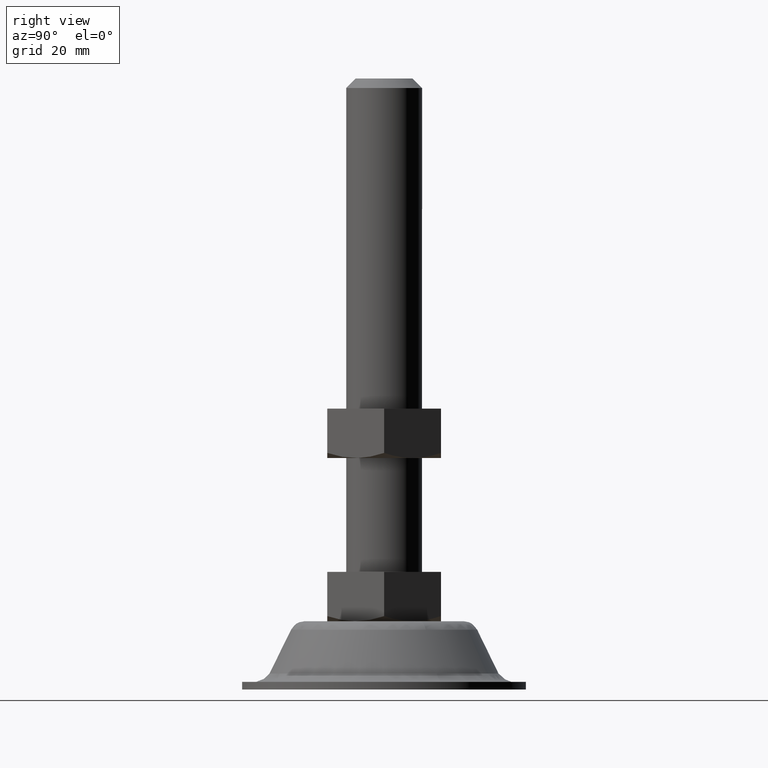
[diagram: clean part render]
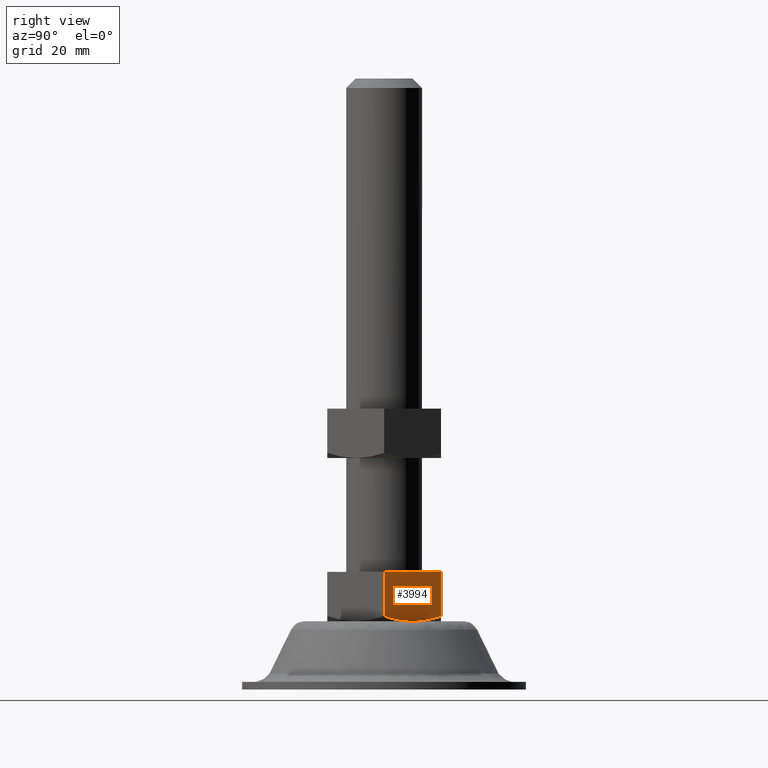
[diagram: same view with one face highlighted and labeled with its STEP entity id]
A machine part, right view. The second image highlights one B-rep face of the part: STEP entity #3994.
In plain terms, the highlighted face is a freeform B-spline surface patch.
Its self-contained STEP definition (entity closure, byte-faithful):
#2693=CARTESIAN_POINT('',(8.639746000000001,15.0,19.345671394023402));
#2694=VERTEX_POINT('',#2693);
#2717=CARTESIAN_POINT('',(17.300000000000001,-1.447629E-015,19.339745951230899));
#2718=VERTEX_POINT('',#2717);
#2719=CARTESIAN_POINT('',(17.300000000000001,-1.447629E-015,19.339745951230899));
#2720=CARTESIAN_POINT('',(16.592941722767890,1.224660865429819,18.931525664537759));
#2721=CARTESIAN_POINT('',(15.880722203566361,2.458261264219844,18.595166574799990));
#2722=CARTESIAN_POINT('',(14.801235094892681,4.327987790728773,18.245981053792178));
#2723=CARTESIAN_POINT('',(14.439541958482760,4.954458682477307,18.155540189446029));
#2724=CARTESIAN_POINT('',(13.711936844397590,6.214707713426930,18.033398389028552));
#2725=CARTESIAN_POINT('',(13.346021212827759,6.848492181359092,18.001748326998712));
#2726=CARTESIAN_POINT('',(12.885799685170850,7.645619253481176,18.001546577077889));
#2727=CARTESIAN_POINT('',(12.793614645803340,7.805288426061184,18.003465697697191));
#2728=CARTESIAN_POINT('',(12.608961067811620,8.125117806339850,18.011251166375111));
#2729=CARTESIAN_POINT('',(12.516661840701390,8.284984757892692,18.017113104138250));
#2730=CARTESIAN_POINT('',(12.240427566274510,8.763436558082763,18.040486526452241));
#2731=CARTESIAN_POINT('',(12.056912984918890,9.081293138309430,18.063800979005290));
#2732=CARTESIAN_POINT('',(11.508210259183770,10.031674141687260,18.155931109065261));
#2733=CARTESIAN_POINT('',(11.144867414517419,10.661002411966059,18.246985155436430));
#2734=CARTESIAN_POINT('',(10.061320491401830,12.537760743388411,18.598259512653328));
#2735=CARTESIAN_POINT('',(9.347572270797711,13.774008930688920,18.936281682498429));
#2736=CARTESIAN_POINT('',(8.639746000000001,15.0,19.345671394023402));
#2737=B_SPLINE_CURVE_WITH_KNOTS('',3,(#2719,#2720,#2721,#2722,#2723,#2724,#2725,#2726,#2727,#2728,#2729,#2730,#2731,#2732,#2733,#2734,#2735,#2736),.UNSPECIFIED.,.F.,.U.,(4,2,2,2,2,2,2,2,4),(0.0,0.250000000000000,0.375000000000000,0.500000000000001,0.531250000000001,0.562500000000001,0.625000000000001,0.750000000000000,1.0),.UNSPECIFIED.);
#2738=EDGE_CURVE('',#2718,#2694,#2737,.T.);
#3886=CARTESIAN_POINT('',(17.300000000000001,0.0,31.0));
#3887=VERTEX_POINT('',#3886);
#3893=CARTESIAN_POINT('',(8.639746000000001,15.0,31.0));
#3894=VERTEX_POINT('',#3893);
#3895=CARTESIAN_POINT('',(8.639746000000001,15.0,31.0));
#3896=CARTESIAN_POINT('',(17.300000000000001,0.0,31.0));
#3897=QUASI_UNIFORM_CURVE('',1,(#3895,#3896),.UNSPECIFIED.,.F.,.U.);
#3898=EDGE_CURVE('',#3894,#3887,#3897,.T.);
#3970=CARTESIAN_POINT('',(17.300000000000001,0.0,31.0));
#3971=CARTESIAN_POINT('',(17.300000000000001,-1.447629E-015,19.339745951230899));
#3972=QUASI_UNIFORM_CURVE('',1,(#3970,#3971),.UNSPECIFIED.,.F.,.U.);
#3973=EDGE_CURVE('',#3887,#2718,#3972,.T.);
#3979=CARTESIAN_POINT('',(17.732579507922232,-0.749249689308546,17.352318113524198));
#3980=CARTESIAN_POINT('',(8.207166104934267,15.749250359860810,17.352318113524198));
#3981=CARTESIAN_POINT('',(17.732579507922232,-0.749249689308546,31.649270966327339));
#3982=CARTESIAN_POINT('',(8.207166104934267,15.749250359860810,31.649270966327339));
#3983=B_SPLINE_SURFACE_WITH_KNOTS('',1,1,((#3979,#3981),(#3980,#3982)),.UNSPECIFIED.,.F.,.F.,.U.,(2,2),(2,2),(0.0,19.050826868413459),(0.0,14.296952852803130),.UNSPECIFIED.);
#3984=ORIENTED_EDGE('',*,*,#3973,.T.);
#3985=ORIENTED_EDGE('',*,*,#2738,.T.);
#3986=CARTESIAN_POINT('',(8.639746000000001,15.0,31.0));
#3987=CARTESIAN_POINT('',(8.639746000000001,15.0,19.345671394023402));
#3988=QUASI_UNIFORM_CURVE('',1,(#3986,#3987),.UNSPECIFIED.,.F.,.U.);
#3989=EDGE_CURVE('',#3894,#2694,#3988,.T.);
#3990=ORIENTED_EDGE('',*,*,#3989,.F.);
#3991=ORIENTED_EDGE('',*,*,#3898,.T.);
#3992=EDGE_LOOP('',(#3984,#3985,#3990,#3991));
#3993=FACE_OUTER_BOUND('',#3992,.T.);
#3994=ADVANCED_FACE('',(#3993),#3983,.T.);